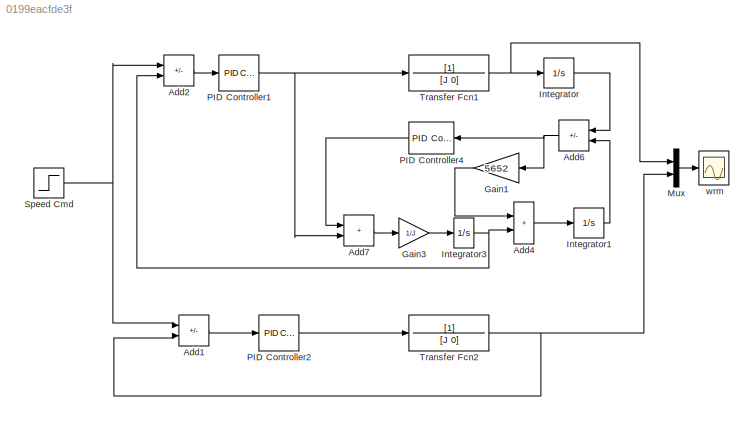
MODEL slx_0199eacfde3f
KIND model
CONFIG AbsTol = auto
CONFIG EnableMultiTasking = off
CONFIG FixedStep = 0.00001
CONFIG MaxStep = auto
CONFIG MinStep = auto
CONFIG RelTol = 1e-3
CONFIG SampleTimeConstraint = Unconstrained
CONFIG SolverName = FixedStepAuto
CONFIG StartTime = 0.0
CONFIG StopTime = 0.2
BLOCK [Sum] Add1
  IconShape = rectangular
  Inputs = +-
BLOCK [Sum] Add2
  IconShape = rectangular
  Inputs = +-
BLOCK [Sum] Add4
  IconShape = rectangular
BLOCK [Sum] Add6
  IconShape = rectangular
  Inputs = +-
  NameLocation = top
BLOCK [Sum] Add7
  IconShape = rectangular
BLOCK [Gain] Gain1
  Gain = 5652
  NameLocation = top
BLOCK [Gain] Gain3
  Gain = 1/J
BLOCK [Integrator] Integrator
BLOCK [Integrator] Integrator1
BLOCK [Integrator] Integrator3
BLOCK [Mux] Mux
  DisplayOption = bar
  Inputs = 2
BLOCK [Reference] PID Controller1  REF=slpidlib/PID Controller
  LibrarySourceBlock = simulink/Continuous/PID Controller
  SourceBlock = slpidlib/PID Controller
  SourceType = PID 1dof
BLOCK [Reference] PID Controller2  REF=slpidlib/PID Controller
  LibrarySourceBlock = simulink/Continuous/PID Controller
  SourceBlock = slpidlib/PID Controller
  SourceType = PID 1dof
BLOCK [Reference] PID Controller4  REF=slpidlib/PID Controller
  LibrarySourceBlock = simulink/Continuous/PID Controller
  NameLocation = top
  SourceBlock = slpidlib/PID Controller
  SourceType = PID 1dof
BLOCK [Step] Speed Cmd
  After = 100
  SampleTime = 0
  Time = 0
BLOCK [TransferFcn] Transfer Fcn1
  Denominator = [J 0]
BLOCK [TransferFcn] Transfer Fcn2
  Denominator = [J 0]
BLOCK [Scope] wrm
  Floating = off
  NumInputPorts = 1
  ScopeSpecificationString = Simulink.scopes.TimeScopeBlockCfg('CurrentConfiguration', extmgr.ConfigurationSet(extmgr.Configuration('Core','General UI',true,'FigureColor',[1 1 1]),extmgr.Configuration('Core','Source UI',true),extmgr.Configuration('Sources','WiredSimulink',true,'DataLoggingVariableName','ScopeData1'),extmgr.Configuration('Visuals','Time Domain',true,'SerializedDisplays',{struct('MinYLimReal','-6277888921634962...<+2111ch>
LINE Add1:1 -> PID Controller2:1
LINE Add2:1 -> PID Controller1:1
LINE Add4:1 -> Integrator1:1
NET Add6:1 -> Gain1:1, PID Controller4:1
LINE Add7:1 -> Gain3:1
LINE Gain1:1 -> Add4:1
LINE Gain3:1 -> Integrator3:1
LINE Integrator1:1 -> Add6:2
NET Integrator3:1 -> Add2:2, Add4:2
LINE Integrator:1 -> Add6:1
LINE Mux:1 -> wrm:1
NET PID Controller1:1 -> Add7:2, Transfer Fcn1:1
LINE PID Controller2:1 -> Transfer Fcn2:1
LINE PID Controller4:1 -> Add7:1
NET Speed Cmd:1 -> Add1:1, Add2:1
NET Transfer Fcn1:1 -> Integrator:1, Mux:1
NET Transfer Fcn2:1 -> Add1:2, Mux:2
note: NET lines group one-source signal fan-out (src -> all destinations, sorted); 1:1 wires keep LINE
